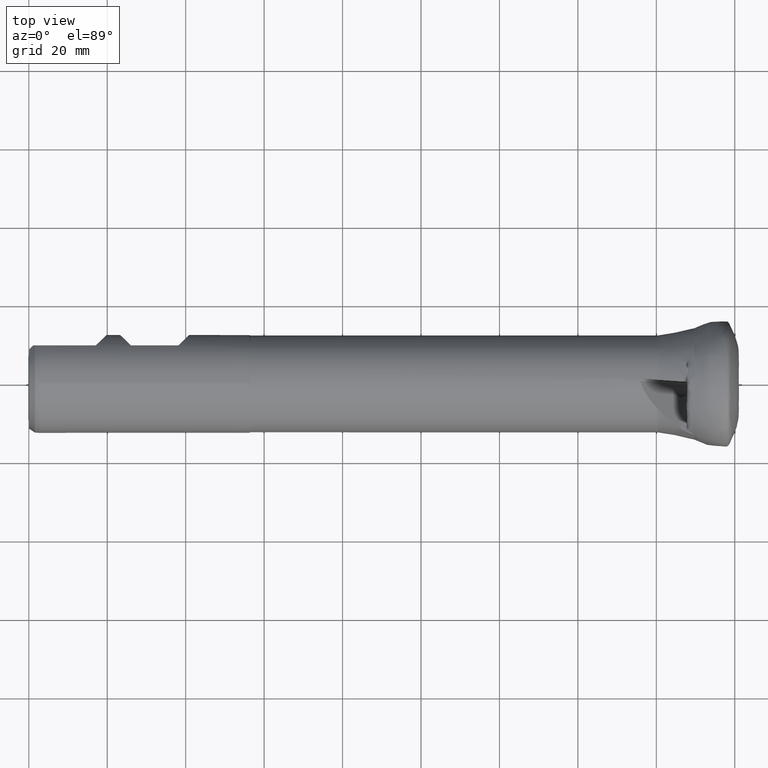
[diagram: clean part render]
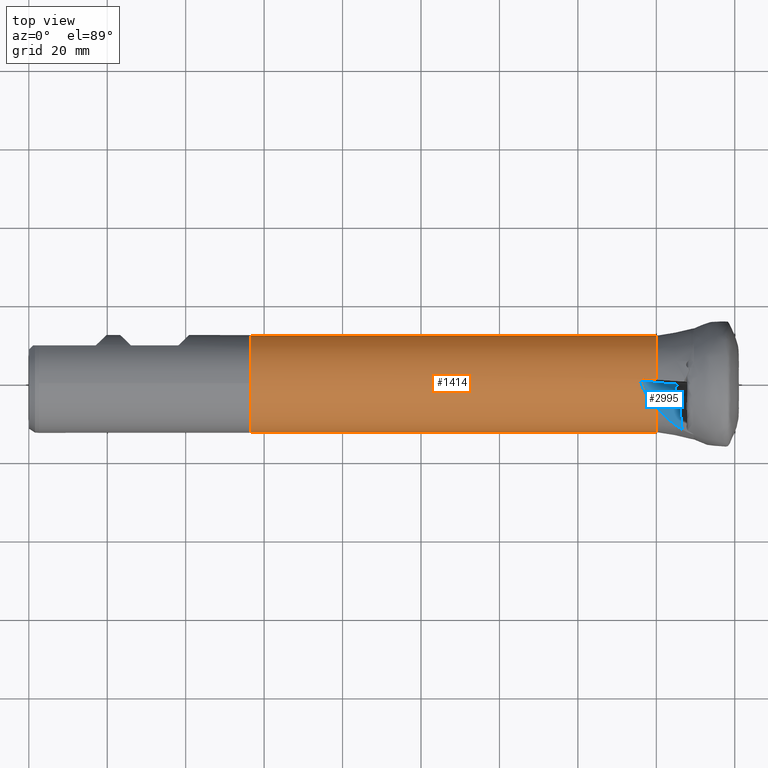
[diagram: same view with the hole feature highlighted: cylindrical wall and planar end face, labeled with their STEP entity ids]
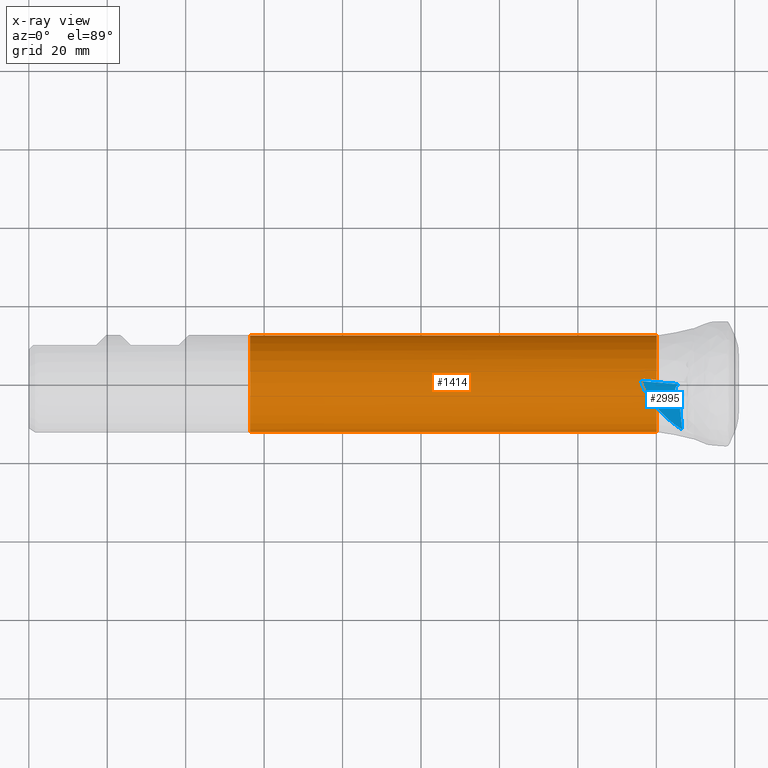
[diagram: x-ray of the same camera — body ghosted, the hole faces saturated]
A machine part, top view. The highlighted faces form one hole feature of diameter 24.8 mm: the cylindrical wall (entity #1414, orange) and its adjacent planar end face (entity #2995, blue) — they share a circular edge in the B-rep.
The next image is the same camera in x-ray (body ghosted, the hole faces saturated) — the bore reads through the body.
Wall:
#355 = EDGE_CURVE ( 'NONE', #4404, #470, #1903, .T. ) ;
#441 = CARTESIAN_POINT ( 'NONE',  ( -19.89003123507075100, 6.183378873407998600, -10.74829408361583900 ) ) ;
#442 = EDGE_CURVE ( 'NONE', #4098, #4404, #4850, .T. ) ;
#468 = ORIENTED_EDGE ( 'NONE', *, *, #3857, .T. ) ;
#470 = VERTEX_POINT ( 'NONE', #5245 ) ;
#475 = CARTESIAN_POINT ( 'NONE',  ( -23.24405145381696500, 1.084063789852097500, 12.35252224039815700 ) ) ;
#516 = CARTESIAN_POINT ( 'NONE',  ( -23.24405145381696500, -1.084063789852097500, -12.35252224039815700 ) ) ;
#522 = CARTESIAN_POINT ( 'NONE',  ( -23.34213097122912800, -1.090922177821686000, -12.35192034469541000 ) ) ;
#529 = CARTESIAN_POINT ( 'NONE',  ( -23.43947961464389400, -1.086113812856053900, -12.35235394115344600 ) ) ;
#531 = CARTESIAN_POINT ( 'NONE',  ( -23.63265009920493000, -1.052117457994684600, -12.35529602869103600 ) ) ;
#533 = VERTEX_POINT ( 'NONE', #5621 ) ;
#535 = CARTESIAN_POINT ( 'NONE',  ( -23.72626172958623400, -1.023435327547562700, -12.35777358190525300 ) ) ;
#538 = CARTESIAN_POINT ( 'NONE',  ( -23.90089069811527300, -0.9345448090207478800, -12.36481353564380100 ) ) ;
#544 = CARTESIAN_POINT ( 'NONE',  ( -23.98237085165977700, -0.8736718330981566600, -12.36944901103013600 ) ) ;
#556 = CARTESIAN_POINT ( 'NONE',  ( -24.06466515719549200, -0.7523251860271369400, -12.37722301817247900 ) ) ;
#560 = CARTESIAN_POINT ( 'NONE',  ( -24.08510931450247100, -0.7062196491119485700, -12.37996702173211400 ) ) ;
#562 = CARTESIAN_POINT ( 'NONE',  ( -24.10283271111432100, -0.6098227277811970600, -12.38508966025873900 ) ) ;
#578 = CARTESIAN_POINT ( 'NONE',  ( -24.08616488717508000, -0.5120036210849698800, -12.38942501861952600 ) ) ;
#582 = CARTESIAN_POINT ( 'NONE',  ( -24.10003802925032100, -0.5596826819395265300, -12.38745464051313600 ) ) ;
#611 = ORIENTED_EDGE ( 'NONE', *, *, #4910, .T. ) ;
#644 = CARTESIAN_POINT ( 'NONE',  ( -23.24405145381696500, 1.084063789852097500, 12.35252224039815700 ) ) ;
#652 = CARTESIAN_POINT ( 'NONE',  ( -23.34213097122912800, 1.090922177821686000, 12.35192034469541000 ) ) ;
#658 = CARTESIAN_POINT ( 'NONE',  ( -23.43947961464389400, 1.086113812856053900, 12.35235394115344600 ) ) ;
#663 = CARTESIAN_POINT ( 'NONE',  ( -23.63265009920493000, 1.052117457994684600, 12.35529602869103600 ) ) ;
#670 = CARTESIAN_POINT ( 'NONE',  ( -23.72626172958623400, 1.023435327547562700, 12.35777358190525300 ) ) ;
#675 = CARTESIAN_POINT ( 'NONE',  ( -23.90089069811527300, 0.9345448090207478800, 12.36481353564380100 ) ) ;
#676 = CARTESIAN_POINT ( 'NONE',  ( -23.98237085165977700, 0.8736718330981566600, 12.36944901103013600 ) ) ;
#677 = DIRECTION ( 'NONE',  ( 0.0000000000000000000, 0.0000000000000000000, -1.000000000000000000 ) ) ;
#680 = CARTESIAN_POINT ( 'NONE',  ( -24.06466515719549200, 0.7523251860271369400, 12.37722301817247900 ) ) ;
#683 = CARTESIAN_POINT ( 'NONE',  ( -24.08510931450247100, 0.7062196491119485700, 12.37996702173211400 ) ) ;
#693 = CARTESIAN_POINT ( 'NONE',  ( -24.10283271111432100, 0.6098227277811970600, 12.38508966025873900 ) ) ;
#695 = DIRECTION ( 'NONE',  ( 1.000000000000000000, -0.0000000000000000000, -0.0000000000000000000 ) ) ;
#711 = CARTESIAN_POINT ( 'NONE',  ( -24.08616488717508000, 0.5120036210849698800, 12.38942501861952600 ) ) ;
#712 = CARTESIAN_POINT ( 'NONE',  ( -19.89003123507075100, 0.0000000000000000000, 0.0000000000000000000 ) ) ;
#768 = AXIS2_PLACEMENT_3D ( 'NONE', #3654, #3648, #3645 ) ;
#773 = CARTESIAN_POINT ( 'NONE',  ( -19.89003123507075100, -6.183378873407998600, 10.74829408361583900 ) ) ;
#785 = CARTESIAN_POINT ( 'NONE',  ( -24.10003802925032100, 0.5596826819395265300, 12.38745464051313600 ) ) ;
#786 = CARTESIAN_POINT ( 'NONE',  ( -21.96365253246990400, -4.137856542915407100, 11.92506124918237400 ) ) ;
#819 = CARTESIAN_POINT ( 'NONE',  ( -24.08616488717508000, 0.5120036210849698800, 12.38942501861952600 ) ) ;
#919 = EDGE_CURVE ( 'NONE', #3421, #1082, #1618, .T. ) ;
#974 = CARTESIAN_POINT ( 'NONE',  ( -23.40010349942072000, -1.845844549089423100, 12.48686511767848900 ) ) ;
#1016 = ORIENTED_EDGE ( 'NONE', *, *, #4938, .T. ) ;
#1082 = VERTEX_POINT ( 'NONE', #441 ) ;
#1276 = FACE_OUTER_BOUND ( 'NONE', #2558, .T. ) ;
#1414 = ADVANCED_FACE ( 'Fl�che9', ( #2552, #1276 ), #4687, .T. ) ;
#1433 = AXIS2_PLACEMENT_3D ( 'NONE', #5772, #2804, #5580 ) ;
#1475 = EDGE_LOOP ( 'NONE', ( #4646, #611, #4516, #3736, #3270, #1016, #2917, #4825 ) ) ;
#1618 =( BOUNDED_CURVE ( )  B_SPLINE_CURVE ( 3, ( #1961, #2072, #2083, #1941 ),
 .UNSPECIFIED., .F., .F. ) 
 B_SPLINE_CURVE_WITH_KNOTS ( ( 4, 4 ),
 ( 3.382142440947793800, 3.945496487195207600 ),
 .UNSPECIFIED. ) 
 CURVE ( )  GEOMETRIC_REPRESENTATION_ITEM ( )  RATIONAL_B_SPLINE_CURVE ( ( 1.000000000000000000, 0.9737270881840048900, 0.9737270881840048900, 1.000000000000000000 ) ) 
 REPRESENTATION_ITEM ( '' )  );
#1903 =( BOUNDED_CURVE ( )  B_SPLINE_CURVE ( 3, ( #5342, #5522, #3574, #2491 ),
 .UNSPECIFIED., .F., .F. ) 
 B_SPLINE_CURVE_WITH_KNOTS ( ( 4, 4 ),
 ( 1.639360344741967600, 1.658332575621686200 ),
 .UNSPECIFIED. ) 
 CURVE ( )  GEOMETRIC_REPRESENTATION_ITEM ( )  RATIONAL_B_SPLINE_CURVE ( ( 1.000000000000000000, 0.9999700047628851100, 0.9999700047628851100, 1.000000000000000000 ) ) 
 REPRESENTATION_ITEM ( '' )  );
#1941 = CARTESIAN_POINT ( 'NONE',  ( -19.89003123507075100, 6.183378873407998600, -10.74829408361583900 ) ) ;
#1961 = CARTESIAN_POINT ( 'NONE',  ( -24.08616488717508000, -0.5120036210849698800, -12.38942501861952600 ) ) ;
#2051 = B_SPLINE_CURVE_WITH_KNOTS ( 'NONE', 3,
 ( #578, #582, #562, #560, #556, #544, #538, #535, #531, #529, #522, #516 ),
 .UNSPECIFIED., .F., .F.,
 ( 4, 2, 2, 2, 2, 4 ),
 ( 3.794707603699265500E-018, 0.0001468692598765692000, 0.0002937385197531346100, 0.0005874770395062651100, 0.0008812155592593956000, 0.001174954079012526300 ),
 .UNSPECIFIED. ) ;
#2072 = CARTESIAN_POINT ( 'NONE',  ( -23.40010349942072000, 1.845844549089423100, -12.48686511767848900 ) ) ;
#2083 = CARTESIAN_POINT ( 'NONE',  ( -21.96365253246990400, 4.137856542915407100, -11.92506124918237400 ) ) ;
#2187 = CARTESIAN_POINT ( 'NONE',  ( -19.89003123507075100, -0.8495278487611454000, -12.37086506410036300 ) ) ;
#2491 = CARTESIAN_POINT ( 'NONE',  ( -23.24405145381696500, -1.084063789852097500, -12.35252224039815700 ) ) ;
#2552 = FACE_OUTER_BOUND ( 'NONE', #1475, .T. ) ;
#2558 = EDGE_LOOP ( 'NONE', ( #468 ) ) ;
#2583 = EDGE_CURVE ( 'NONE', #1082, #2766, #4544, .T. ) ;
#2668 = VERTEX_POINT ( 'NONE', #475 ) ;
#2766 = VERTEX_POINT ( 'NONE', #4739 ) ;
#2804 = DIRECTION ( 'NONE',  ( 1.000000000000000000, -0.0000000000000000000, -0.0000000000000000000 ) ) ;
#2848 = CARTESIAN_POINT ( 'NONE',  ( -24.08616488717508000, 0.5120036210849698800, 12.38942501861952600 ) ) ;
#2860 = VERTEX_POINT ( 'NONE', #2848 ) ;
#2892 = AXIS2_PLACEMENT_3D ( 'NONE', #3498, #3487, #3504 ) ;
#2906 = CARTESIAN_POINT ( 'NONE',  ( -19.89003123507075100, -6.183378873407998600, 10.74829408361583900 ) ) ;
#2917 = ORIENTED_EDGE ( 'NONE', *, *, #355, .F. ) ;
#3270 = ORIENTED_EDGE ( 'NONE', *, *, #919, .F. ) ;
#3373 =( BOUNDED_CURVE ( )  B_SPLINE_CURVE ( 3, ( #5725, #5654, #4773, #4767 ),
 .UNSPECIFIED., .F., .T. ) 
 B_SPLINE_CURVE_WITH_KNOTS ( ( 4, 4 ),
 ( 1.639360344741967600, 1.658332575621686200 ),
 .UNSPECIFIED. ) 
 CURVE ( )  GEOMETRIC_REPRESENTATION_ITEM ( )  RATIONAL_B_SPLINE_CURVE ( ( 1.000000000000000000, 0.9999700047628851100, 0.9999700047628851100, 1.000000000000000000 ) ) 
 REPRESENTATION_ITEM ( '' )  );
#3421 = VERTEX_POINT ( 'NONE', #4783 ) ;
#3487 = DIRECTION ( 'NONE',  ( 1.000000000000000000, -0.0000000000000000000, -0.0000000000000000000 ) ) ;
#3498 = CARTESIAN_POINT ( 'NONE',  ( 0.0000000000000000000, 0.0000000000000000000, 0.0000000000000000000 ) ) ;
#3504 = DIRECTION ( 'NONE',  ( 0.0000000000000000000, 0.0000000000000000000, -1.000000000000000000 ) ) ;
#3568 = B_SPLINE_CURVE_WITH_KNOTS ( 'NONE', 3,
 ( #711, #785, #693, #683, #680, #676, #675, #670, #663, #658, #652, #644 ),
 .UNSPECIFIED., .F., .F.,
 ( 4, 2, 2, 2, 2, 4 ),
 ( 3.794707603699265500E-018, 0.0001468692598765692000, 0.0002937385197531346100, 0.0005874770395062651100, 0.0008812155592593956000, 0.001174954079012526300 ),
 .UNSPECIFIED. ) ;
#3574 = CARTESIAN_POINT ( 'NONE',  ( -22.12689094347554100, -1.005944316934751900, -12.35937804605662100 ) ) ;
#3645 = DIRECTION ( 'NONE',  ( 0.0000000000000000000, 0.0000000000000000000, -1.000000000000000000 ) ) ;
#3648 = DIRECTION ( 'NONE',  ( 1.000000000000000000, -0.0000000000000000000, -0.0000000000000000000 ) ) ;
#3654 = CARTESIAN_POINT ( 'NONE',  ( -123.5588490155257100, 0.0000000000000000000, 0.0000000000000000000 ) ) ;
#3736 = ORIENTED_EDGE ( 'NONE', *, *, #2583, .F. ) ;
#3857 = EDGE_CURVE ( 'NONE', #533, #533, #5348, .T. ) ;
#4098 = VERTEX_POINT ( 'NONE', #2906 ) ;
#4404 = VERTEX_POINT ( 'NONE', #2187 ) ;
#4516 = ORIENTED_EDGE ( 'NONE', *, *, #5177, .F. ) ;
#4544 = CIRCLE ( 'NONE', #5137, 12.39999999999998400 ) ;
#4646 = ORIENTED_EDGE ( 'NONE', *, *, #5561, .F. ) ;
#4687 = CYLINDRICAL_SURFACE ( 'NONE', #2892, 12.39999999999998400 ) ;
#4739 = CARTESIAN_POINT ( 'NONE',  ( -19.89003123507075100, 0.8495278487611454000, 12.37086506410036300 ) ) ;
#4767 = CARTESIAN_POINT ( 'NONE',  ( -23.24405145381696500, 1.084063789852097500, 12.35252224039815700 ) ) ;
#4773 = CARTESIAN_POINT ( 'NONE',  ( -22.12689094347554100, 1.005944316934751900, 12.35937804605662100 ) ) ;
#4783 = CARTESIAN_POINT ( 'NONE',  ( -24.08616488717508000, -0.5120036210849698800, -12.38942501861952600 ) ) ;
#4825 = ORIENTED_EDGE ( 'NONE', *, *, #442, .F. ) ;
#4850 = CIRCLE ( 'NONE', #1433, 12.39999999999998400 ) ;
#4910 = EDGE_CURVE ( 'NONE', #2860, #2668, #3568, .T. ) ;
#4938 = EDGE_CURVE ( 'NONE', #3421, #470, #2051, .T. ) ;
#5137 = AXIS2_PLACEMENT_3D ( 'NONE', #712, #695, #677 ) ;
#5177 = EDGE_CURVE ( 'NONE', #2766, #2668, #3373, .T. ) ;
#5245 = CARTESIAN_POINT ( 'NONE',  ( -23.24405145381696500, -1.084063789852097500, -12.35252224039815700 ) ) ;
#5342 = CARTESIAN_POINT ( 'NONE',  ( -19.89003123507075100, -0.8495278487611454000, -12.37086506410036300 ) ) ;
#5348 = CIRCLE ( 'NONE', #768, 12.39999999999998400 ) ;
#5522 = CARTESIAN_POINT ( 'NONE',  ( -21.00885066801031800, -0.9277633248470401600, -12.36549250402864100 ) ) ;
#5561 = EDGE_CURVE ( 'NONE', #2860, #4098, #5673, .T. ) ;
#5580 = DIRECTION ( 'NONE',  ( 0.0000000000000000000, 0.0000000000000000000, -1.000000000000000000 ) ) ;
#5621 = CARTESIAN_POINT ( 'NONE',  ( -123.5588490155257100, 0.0000000000000000000, -12.39999999999998400 ) ) ;
#5654 = CARTESIAN_POINT ( 'NONE',  ( -21.00885066801031800, 0.9277633248470401600, 12.36549250402864100 ) ) ;
#5673 =( BOUNDED_CURVE ( )  B_SPLINE_CURVE ( 3, ( #819, #974, #786, #773 ),
 .UNSPECIFIED., .F., .T. ) 
 B_SPLINE_CURVE_WITH_KNOTS ( ( 4, 4 ),
 ( 3.382142440947793800, 3.945496487195207600 ),
 .UNSPECIFIED. ) 
 CURVE ( )  GEOMETRIC_REPRESENTATION_ITEM ( )  RATIONAL_B_SPLINE_CURVE ( ( 1.000000000000000000, 0.9737270881840048900, 0.9737270881840048900, 1.000000000000000000 ) ) 
 REPRESENTATION_ITEM ( '' )  );
#5725 = CARTESIAN_POINT ( 'NONE',  ( -19.89003123507075100, 0.8495278487611454000, 12.37086506410036300 ) ) ;
#5772 = CARTESIAN_POINT ( 'NONE',  ( -19.89003123507075100, 0.0000000000000000000, 0.0000000000000000000 ) ) ;
End face:
#40 = ORIENTED_EDGE ( 'NONE', *, *, #5607, .T. ) ;
#235 = ORIENTED_EDGE ( 'NONE', *, *, #5229, .T. ) ;
#275 = CARTESIAN_POINT ( 'NONE',  ( -19.32557320726839800, -6.787148216991650600, 10.44156546968564000 ) ) ;
#440 = DIRECTION ( 'NONE',  ( -0.09761794098781870200, 0.9751106301126051300, -0.1990728425443731600 ) ) ;
#484 = FACE_OUTER_BOUND ( 'NONE', #3031, .T. ) ;
#558 = ORIENTED_EDGE ( 'NONE', *, *, #4345, .T. ) ;
#602 = VECTOR ( 'NONE', #1710, 1000.000000000000000 ) ;
#613 = VECTOR ( 'NONE', #4486, 1000.000000000000100 ) ;
#684 = CARTESIAN_POINT ( 'NONE',  ( -14.62959053600901300, 0.4816820012579975400, 4.330510921195249300 ) ) ;
#734 = DIRECTION ( 'NONE',  ( -0.6338334336579709600, -0.2151291035132201200, -0.7429499627827871300 ) ) ;
#753 = DIRECTION ( 'NONE',  ( -0.7607627526653432100, 0.0000000000000000000, 0.6490300718434006700 ) ) ;
#773 = CARTESIAN_POINT ( 'NONE',  ( -19.89003123507075100, -6.183378873407998600, 10.74829408361583900 ) ) ;
#786 = CARTESIAN_POINT ( 'NONE',  ( -21.96365253246990400, -4.137856542915407100, 11.92506124918237400 ) ) ;
#804 = LINE ( 'NONE', #684, #5415 ) ;
#810 = AXIS2_PLACEMENT_3D ( 'NONE', #2095, #734, #753 ) ;
#819 = CARTESIAN_POINT ( 'NONE',  ( -24.08616488717508000, 0.5120036210849698800, 12.38942501861952600 ) ) ;
#891 = ORIENTED_EDGE ( 'NONE', *, *, #5561, .T. ) ;
#974 = CARTESIAN_POINT ( 'NONE',  ( -23.40010349942072000, -1.845844549089423100, 12.48686511767848900 ) ) ;
#1281 = CARTESIAN_POINT ( 'NONE',  ( -13.40528090614652800, -11.74800982124328100, 6.827252767057250300 ) ) ;
#1490 = CARTESIAN_POINT ( 'NONE',  ( -19.32557320726839800, -6.787148216991650600, 10.44156546968564000 ) ) ;
#1509 = CARTESIAN_POINT ( 'NONE',  ( -19.89003123507075100, -6.183378873407998600, 10.74829408361583900 ) ) ;
#1514 = CARTESIAN_POINT ( 'NONE',  ( -19.69583653374872200, -6.374942105573737200, 10.63808980064025000 ) ) ;
#1540 = CARTESIAN_POINT ( 'NONE',  ( -14.25359801755823200, -3.274126591651337600, 5.097274680663959500 ) ) ;
#1551 = CARTESIAN_POINT ( 'NONE',  ( -19.50815823105553500, -6.576959589983022000, 10.53647199798046700 ) ) ;
#1675 = VERTEX_POINT ( 'NONE', #2401 ) ;
#1710 = DIRECTION ( 'NONE',  ( -0.7672847685016595000, 0.05365377771412027700, 0.6390581790121761000 ) ) ;
#1731 = CARTESIAN_POINT ( 'NONE',  ( -24.18992172626201800, 0.5192590060596568000, 12.47584229075753400 ) ) ;
#1814 = PLANE ( 'NONE',  #810 ) ;
#1818 = EDGE_CURVE ( 'NONE', #4258, #2860, #5034, .T. ) ;
#1868 = EDGE_CURVE ( 'NONE', #4098, #5642, #4141, .T. ) ;
#1894 = ORIENTED_EDGE ( 'NONE', *, *, #1818, .T. ) ;
#2095 = CARTESIAN_POINT ( 'NONE',  ( -14.62959053600901300, 0.4816820012579977100, 4.330510921195251900 ) ) ;
#2232 = CARTESIAN_POINT ( 'NONE',  ( -19.32557320726839800, -6.787148216991650600, 10.44156546968564000 ) ) ;
#2275 = CARTESIAN_POINT ( 'NONE',  ( -17.69207920281028000, -8.667597417601445600, 9.592485727338996100 ) ) ;
#2317 = CARTESIAN_POINT ( 'NONE',  ( -14.53020550766217400, -0.5110801553125689000, 4.533187395408397400 ) ) ;
#2322 = CARTESIAN_POINT ( 'NONE',  ( -15.69679639279365300, -0.9135938584357304900, 5.644994057875584800 ) ) ;
#2338 = CARTESIAN_POINT ( 'NONE',  ( -14.53020550766217400, -0.5110801553125689000, 4.533187395408397400 ) ) ;
#2345 = CARTESIAN_POINT ( 'NONE',  ( -15.53812242552757200, -2.498596273336104500, 5.968578814753350900 ) ) ;
#2401 = CARTESIAN_POINT ( 'NONE',  ( -13.40528090614652800, -11.74800982124328100, 6.827252767057250300 ) ) ;
#2555 = CARTESIAN_POINT ( 'NONE',  ( -14.25359801755823200, -3.274126591651337600, 5.097274680663959500 ) ) ;
#2714 = ORIENTED_EDGE ( 'NONE', *, *, #1868, .T. ) ;
#2755 = CARTESIAN_POINT ( 'NONE',  ( -14.56598144723909100, -0.1537124559869642600, 4.460229310918974100 ) ) ;
#2848 = CARTESIAN_POINT ( 'NONE',  ( -24.08616488717508000, 0.5120036210849698800, 12.38942501861952600 ) ) ;
#2860 = VERTEX_POINT ( 'NONE', #2848 ) ;
#2906 = CARTESIAN_POINT ( 'NONE',  ( -19.89003123507075100, -6.183378873407998600, 10.74829408361583900 ) ) ;
#2982 = EDGE_CURVE ( 'NONE', #5642, #1675, #3074, .T. ) ;
#2995 = ADVANCED_FACE ( 'NONE', ( #484 ), #1814, .F. ) ;
#3031 = EDGE_LOOP ( 'NONE', ( #235, #558, #40, #1894, #891, #2714, #5010 ) ) ;
#3074 =( BOUNDED_CURVE ( )  B_SPLINE_CURVE ( 3, ( #2232, #2275, #3859, #1281 ),
 .UNSPECIFIED., .F., .F. ) 
 B_SPLINE_CURVE_WITH_KNOTS ( ( 4, 4 ),
 ( 3.833729324262100200, 4.245138199799168200 ),
 .UNSPECIFIED. ) 
 CURVE ( )  GEOMETRIC_REPRESENTATION_ITEM ( )  RATIONAL_B_SPLINE_CURVE ( ( 1.000000000000000000, 0.9859448941430205600, 0.9859448941430205600, 1.000000000000000000 ) ) 
 REPRESENTATION_ITEM ( '' )  );
#3399 = VERTEX_POINT ( 'NONE', #1540 ) ;
#3859 = CARTESIAN_POINT ( 'NONE',  ( -15.69051625668242300, -10.34479108691687300, 8.370540253476267600 ) ) ;
#3935 = LINE ( 'NONE', #4704, #613 ) ;
#4098 = VERTEX_POINT ( 'NONE', #2906 ) ;
#4141 = B_SPLINE_CURVE_WITH_KNOTS ( 'NONE', 3,
 ( #1509, #1514, #1551, #1490 ),
 .UNSPECIFIED., .F., .F.,
 ( 4, 4 ),
 ( 3.026507726668219400E-007, 0.0008819106861293179300 ),
 .UNSPECIFIED. ) ;
#4258 = VERTEX_POINT ( 'NONE', #2755 ) ;
#4345 = EDGE_CURVE ( 'NONE', #3399, #4349, #5560, .T. ) ;
#4349 = VERTEX_POINT ( 'NONE', #2338 ) ;
#4486 = DIRECTION ( 'NONE',  ( -0.09761794098781870200, 0.9751106301126051300, -0.1990728425443731600 ) ) ;
#4704 = CARTESIAN_POINT ( 'NONE',  ( -14.62959053600901300, 0.4816820012579975400, 4.330510921195249300 ) ) ;
#5010 = ORIENTED_EDGE ( 'NONE', *, *, #2982, .T. ) ;
#5034 = LINE ( 'NONE', #1731, #602 ) ;
#5229 = EDGE_CURVE ( 'NONE', #1675, #3399, #3935, .T. ) ;
#5415 = VECTOR ( 'NONE', #440, 1000.000000000000100 ) ;
#5560 =( BOUNDED_CURVE ( )  B_SPLINE_CURVE ( 3, ( #2555, #2345, #2322, #2317 ),
 .UNSPECIFIED., .F., .T. ) 
 B_SPLINE_CURVE_WITH_KNOTS ( ( 4, 4 ),
 ( 1.495020472309848600, 3.875101729785409800 ),
 .UNSPECIFIED. ) 
 CURVE ( )  GEOMETRIC_REPRESENTATION_ITEM ( )  RATIONAL_B_SPLINE_CURVE ( ( 1.000000000000000000, 0.5810814356629738800, 0.5810814356629738800, 1.000000000000000000 ) ) 
 REPRESENTATION_ITEM ( '' )  );
#5561 = EDGE_CURVE ( 'NONE', #2860, #4098, #5673, .T. ) ;
#5607 = EDGE_CURVE ( 'NONE', #4349, #4258, #804, .T. ) ;
#5642 = VERTEX_POINT ( 'NONE', #275 ) ;
#5673 =( BOUNDED_CURVE ( )  B_SPLINE_CURVE ( 3, ( #819, #974, #786, #773 ),
 .UNSPECIFIED., .F., .T. ) 
 B_SPLINE_CURVE_WITH_KNOTS ( ( 4, 4 ),
 ( 3.382142440947793800, 3.945496487195207600 ),
 .UNSPECIFIED. ) 
 CURVE ( )  GEOMETRIC_REPRESENTATION_ITEM ( )  RATIONAL_B_SPLINE_CURVE ( ( 1.000000000000000000, 0.9737270881840048900, 0.9737270881840048900, 1.000000000000000000 ) ) 
 REPRESENTATION_ITEM ( '' )  );